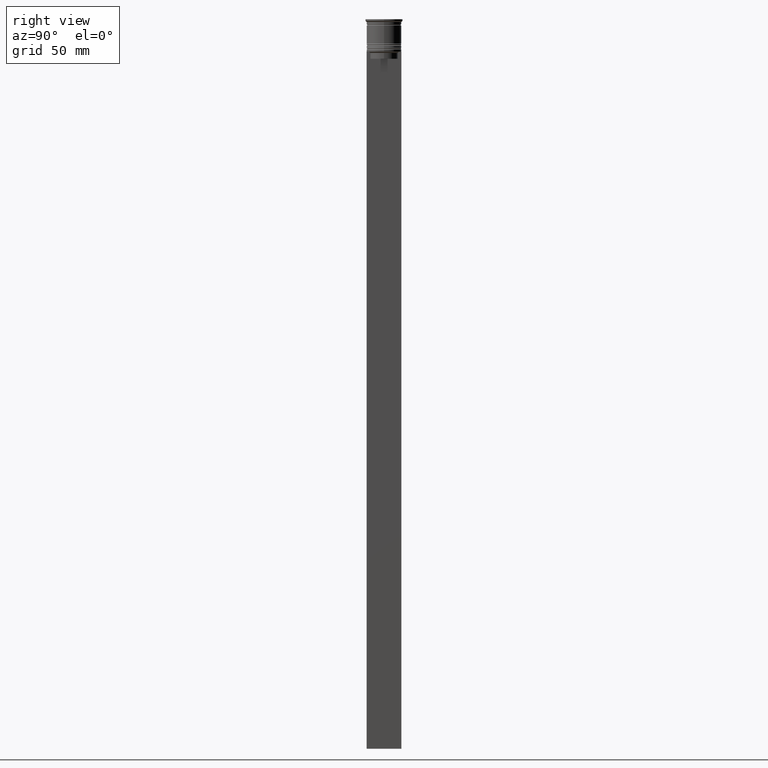
[diagram: clean part render]
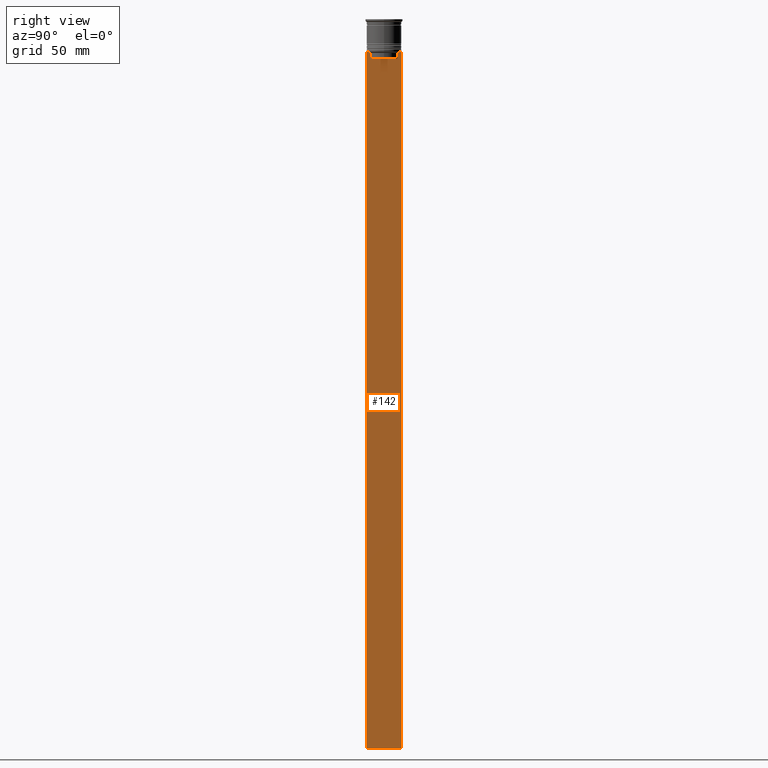
[diagram: same view with one face highlighted and labeled with its STEP entity id]
A machine part, right view. The second image highlights one B-rep face of the part: STEP entity #142.
In plain terms, the highlighted planar face has unit normal (-1, 0, 0).
Its self-contained STEP definition (entity closure, byte-faithful):
#75 = LINE ( 'NONE', #1403, #362 ) ;
#76 = VECTOR ( 'NONE', #999, 1000.000000000000000 ) ;
#106 = ORIENTED_EDGE ( 'NONE', *, *, #382, .F. ) ;
#142 = ADVANCED_FACE ( 'NONE', ( #1932 ), #1340, .F. ) ;
#153 = VECTOR ( 'NONE', #2006, 1000.000000000000000 ) ;
#162 = VECTOR ( 'NONE', #581, 1000.000000000000000 ) ;
#166 = VECTOR ( 'NONE', #1697, 1000.000000000000000 ) ;
#177 = CARTESIAN_POINT ( 'NONE',  ( 0.5000000000000000000, -7.499999999999999112, -314.0000000000000000 ) ) ;
#223 = LINE ( 'NONE', #435, #1920 ) ;
#224 = EDGE_CURVE ( 'NONE', #2476, #1414, #75, .T. ) ;
#236 = CARTESIAN_POINT ( 'NONE',  ( 0.5000000000000000000, -7.499999999999999112, -14.00000000000000178 ) ) ;
#259 = CARTESIAN_POINT ( 'NONE',  ( 0.5000000000000000000, -7.499999999999999112, 1.033296378372908997 ) ) ;
#282 = CARTESIAN_POINT ( 'NONE',  ( 0.5000000000000000000, -6.046019991840948293, -14.33335703538585726 ) ) ;
#312 = VERTEX_POINT ( 'NONE', #813 ) ;
#320 = VERTEX_POINT ( 'NONE', #1388 ) ;
#338 = LINE ( 'NONE', #507, #1074 ) ;
#359 = CARTESIAN_POINT ( 'NONE',  ( 0.5000000000000000000, 5.878775382679625849, -17.00000000000000000 ) ) ;
#362 = VECTOR ( 'NONE', #1805, 1000.000000000000000 ) ;
#370 = ORIENTED_EDGE ( 'NONE', *, *, #821, .T. ) ;
#381 = CARTESIAN_POINT ( 'NONE',  ( 0.5000000000000000000, -7.499999999999999112, -14.00000000000000178 ) ) ;
#382 = EDGE_CURVE ( 'NONE', #2302, #2462, #2388, .T. ) ;
#419 = ORIENTED_EDGE ( 'NONE', *, *, #1729, .T. ) ;
#430 = EDGE_CURVE ( 'NONE', #1507, #312, #338, .T. ) ;
#435 = CARTESIAN_POINT ( 'NONE',  ( 0.5000000000000000000, -7.499999999999999112, -14.00000000000000178 ) ) ;
#448 = ORIENTED_EDGE ( 'NONE', *, *, #777, .T. ) ;
#469 = CARTESIAN_POINT ( 'NONE',  ( 0.5000000000000000000, 5.878775382679625849, -14.50000000000000000 ) ) ;
#501 = VERTEX_POINT ( 'NONE', #947 ) ;
#502 = DIRECTION ( 'NONE',  ( 0.000000000000000000, -1.000000000000000000, 0.000000000000000000 ) ) ;
#507 = CARTESIAN_POINT ( 'NONE',  ( 0.5000000000000000000, -5.878775382679625849, 0.000000000000000000 ) ) ;
#528 = CARTESIAN_POINT ( 'NONE',  ( 0.5000000000000000000, -6.380438856379706536, -14.00000000000000178 ) ) ;
#581 = DIRECTION ( 'NONE',  ( 0.000000000000000000, -1.000000000000000000, 0.000000000000000000 ) ) ;
#599 = CARTESIAN_POINT ( 'NONE',  ( 0.5000000000000000000, 7.500000000000002665, -14.00000000000000178 ) ) ;
#636 = LINE ( 'NONE', #259, #1551 ) ;
#665 = VERTEX_POINT ( 'NONE', #469 ) ;
#696 = DIRECTION ( 'NONE',  ( 0.000000000000000000, 0.000000000000000000, -1.000000000000000000 ) ) ;
#708 = CARTESIAN_POINT ( 'NONE',  ( 0.5000000000000000000, -7.499999999999999112, -314.0000000000000000 ) ) ;
#711 = LINE ( 'NONE', #1820, #1837 ) ;
#765 = CARTESIAN_POINT ( 'NONE',  ( 0.5000000000000000000, 6.046020074006152711, -14.33335695351623151 ) ) ;
#777 = EDGE_CURVE ( 'NONE', #320, #1733, #636, .T. ) ;
#813 = CARTESIAN_POINT ( 'NONE',  ( 0.5000000000000000000, -5.878775382679625849, -14.50000000000000000 ) ) ;
#819 = CARTESIAN_POINT ( 'NONE',  ( 0.5000000000000000000, 7.500000000000002665, -314.0000000000000000 ) ) ;
#821 = EDGE_CURVE ( 'NONE', #312, #501, #1224, .T. ) ;
#884 = CARTESIAN_POINT ( 'NONE',  ( 0.5000000000000000000, -5.878775382679625849, -14.50000000000000000 ) ) ;
#916 = B_SPLINE_CURVE_WITH_KNOTS ( 'NONE', 3,
 ( #1304, #1522, #765, #2300 ),
 .UNSPECIFIED., .F., .F.,
 ( 4, 4 ),
 ( 0.01087727669788152163, 0.01158556069794289788 ),
 .UNSPECIFIED. ) ;
#947 = CARTESIAN_POINT ( 'NONE',  ( 0.5000000000000000000, -6.380438856379706536, -14.00000000000000178 ) ) ;
#949 = CARTESIAN_POINT ( 'NONE',  ( 0.5000000000000000000, 6.380438856379706536, -14.00000000000000178 ) ) ;
#955 = AXIS2_PLACEMENT_3D ( 'NONE', #2260, #1539, #984 ) ;
#983 = ORIENTED_EDGE ( 'NONE', *, *, #1610, .T. ) ;
#984 = DIRECTION ( 'NONE',  ( 0.000000000000000000, 0.000000000000000000, 1.000000000000000000 ) ) ;
#986 = VERTEX_POINT ( 'NONE', #359 ) ;
#999 = DIRECTION ( 'NONE',  ( 0.000000000000000000, -1.000000000000000000, 0.000000000000000000 ) ) ;
#1048 = ORIENTED_EDGE ( 'NONE', *, *, #1626, .T. ) ;
#1074 = VECTOR ( 'NONE', #1663, 1000.000000000000000 ) ;
#1088 = VECTOR ( 'NONE', #696, 1000.000000000000000 ) ;
#1103 = CARTESIAN_POINT ( 'NONE',  ( 0.5000000000000000000, -7.383088784512886527, -14.00000000000000178 ) ) ;
#1116 = EDGE_LOOP ( 'NONE', ( #1823, #1859, #419, #2387, #1517, #370, #1048, #983, #448, #1421, #106, #1672 ) ) ;
#1135 = LINE ( 'NONE', #177, #166 ) ;
#1224 = B_SPLINE_CURVE_WITH_KNOTS ( 'NONE', 3,
 ( #884, #282, #1652, #528 ),
 .UNSPECIFIED., .F., .F.,
 ( 4, 4 ),
 ( 0.02765270321082434479, 0.02836198271238431559 ),
 .UNSPECIFIED. ) ;
#1254 = CARTESIAN_POINT ( 'NONE',  ( 0.5000000000000000000, 7.383088784512886527, -14.00000000000000178 ) ) ;
#1291 = EDGE_CURVE ( 'NONE', #986, #1507, #711, .T. ) ;
#1304 = CARTESIAN_POINT ( 'NONE',  ( 0.5000000000000000000, 6.380438856379706536, -14.00000000000000178 ) ) ;
#1340 = PLANE ( 'NONE',  #955 ) ;
#1344 = VERTEX_POINT ( 'NONE', #1103 ) ;
#1371 = LINE ( 'NONE', #236, #76 ) ;
#1386 = DIRECTION ( 'NONE',  ( 0.000000000000000000, 0.000000000000000000, -1.000000000000000000 ) ) ;
#1388 = CARTESIAN_POINT ( 'NONE',  ( 0.5000000000000000000, -7.499999999999999112, -14.00000000000000178 ) ) ;
#1403 = CARTESIAN_POINT ( 'NONE',  ( 0.5000000000000000000, -7.499999999999999112, -14.00000000000000178 ) ) ;
#1414 = VERTEX_POINT ( 'NONE', #949 ) ;
#1421 = ORIENTED_EDGE ( 'NONE', *, *, #2311, .T. ) ;
#1422 = EDGE_CURVE ( 'NONE', #1414, #665, #916, .T. ) ;
#1507 = VERTEX_POINT ( 'NONE', #2319 ) ;
#1517 = ORIENTED_EDGE ( 'NONE', *, *, #430, .T. ) ;
#1522 = CARTESIAN_POINT ( 'NONE',  ( 0.5000000000000000000, 6.213239387491007015, -14.16668843563492430 ) ) ;
#1539 = DIRECTION ( 'NONE',  ( -1.000000000000000000, 0.000000000000000000, 0.000000000000000000 ) ) ;
#1551 = VECTOR ( 'NONE', #1386, 1000.000000000000000 ) ;
#1610 = EDGE_CURVE ( 'NONE', #1344, #320, #223, .T. ) ;
#1626 = EDGE_CURVE ( 'NONE', #501, #1344, #1371, .T. ) ;
#1652 = CARTESIAN_POINT ( 'NONE',  ( 0.5000000000000000000, -6.213239311785844876, -14.16668851110870087 ) ) ;
#1663 = DIRECTION ( 'NONE',  ( -0.000000000000000000, -0.000000000000000000, 1.000000000000000000 ) ) ;
#1672 = ORIENTED_EDGE ( 'NONE', *, *, #1790, .T. ) ;
#1697 = DIRECTION ( 'NONE',  ( 0.000000000000000000, 1.000000000000000000, 0.000000000000000000 ) ) ;
#1729 = EDGE_CURVE ( 'NONE', #665, #986, #2406, .T. ) ;
#1733 = VERTEX_POINT ( 'NONE', #708 ) ;
#1790 = EDGE_CURVE ( 'NONE', #2302, #2476, #2271, .T. ) ;
#1805 = DIRECTION ( 'NONE',  ( 0.000000000000000000, -1.000000000000000000, 0.000000000000000000 ) ) ;
#1820 = CARTESIAN_POINT ( 'NONE',  ( 0.5000000000000000000, 5.899999999999998579, -17.00000000000000000 ) ) ;
#1823 = ORIENTED_EDGE ( 'NONE', *, *, #224, .T. ) ;
#1837 = VECTOR ( 'NONE', #502, 1000.000000000000000 ) ;
#1859 = ORIENTED_EDGE ( 'NONE', *, *, #1422, .T. ) ;
#1920 = VECTOR ( 'NONE', #1960, 1000.000000000000000 ) ;
#1932 = FACE_OUTER_BOUND ( 'NONE', #1116, .T. ) ;
#1960 = DIRECTION ( 'NONE',  ( 0.000000000000000000, -1.000000000000000000, 0.000000000000000000 ) ) ;
#2006 = DIRECTION ( 'NONE',  ( 0.000000000000000000, 0.000000000000000000, -1.000000000000000000 ) ) ;
#2018 = CARTESIAN_POINT ( 'NONE',  ( 0.5000000000000000000, 5.878775382679625849, 0.000000000000000000 ) ) ;
#2256 = CARTESIAN_POINT ( 'NONE',  ( 0.5000000000000000000, 7.500000000000002665, 1.033296378372908997 ) ) ;
#2260 = CARTESIAN_POINT ( 'NONE',  ( 0.5000000000000000000, -7.499999999999999112, 1.033296378372908997 ) ) ;
#2271 = LINE ( 'NONE', #381, #162 ) ;
#2300 = CARTESIAN_POINT ( 'NONE',  ( 0.5000000000000000000, 5.878775382679625849, -14.50000000000000000 ) ) ;
#2302 = VERTEX_POINT ( 'NONE', #599 ) ;
#2311 = EDGE_CURVE ( 'NONE', #1733, #2462, #1135, .T. ) ;
#2319 = CARTESIAN_POINT ( 'NONE',  ( 0.5000000000000000000, -5.878775382679625849, -17.00000000000000000 ) ) ;
#2387 = ORIENTED_EDGE ( 'NONE', *, *, #1291, .T. ) ;
#2388 = LINE ( 'NONE', #2256, #153 ) ;
#2406 = LINE ( 'NONE', #2018, #1088 ) ;
#2462 = VERTEX_POINT ( 'NONE', #819 ) ;
#2476 = VERTEX_POINT ( 'NONE', #1254 ) ;